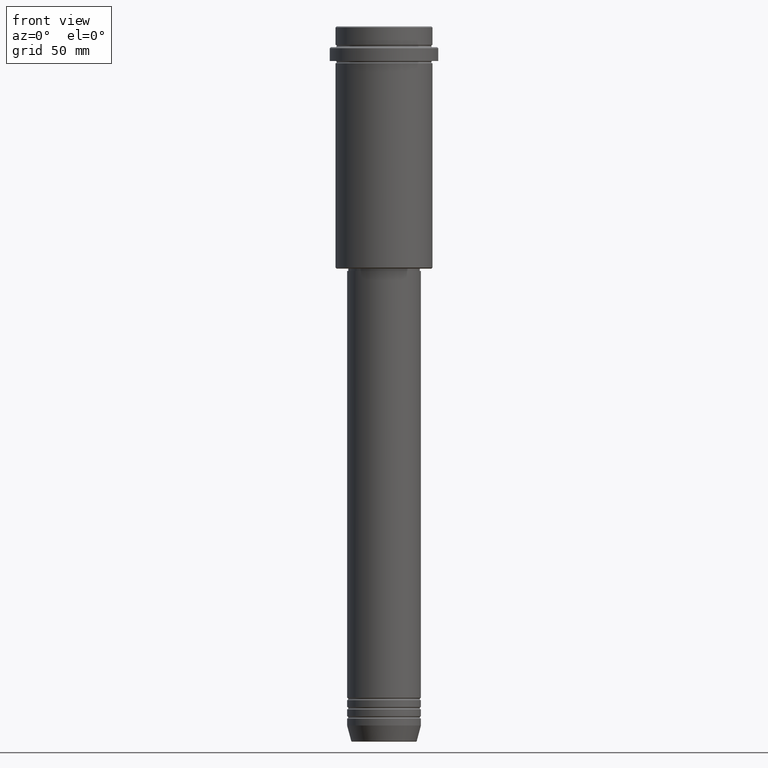
[diagram: clean part render]
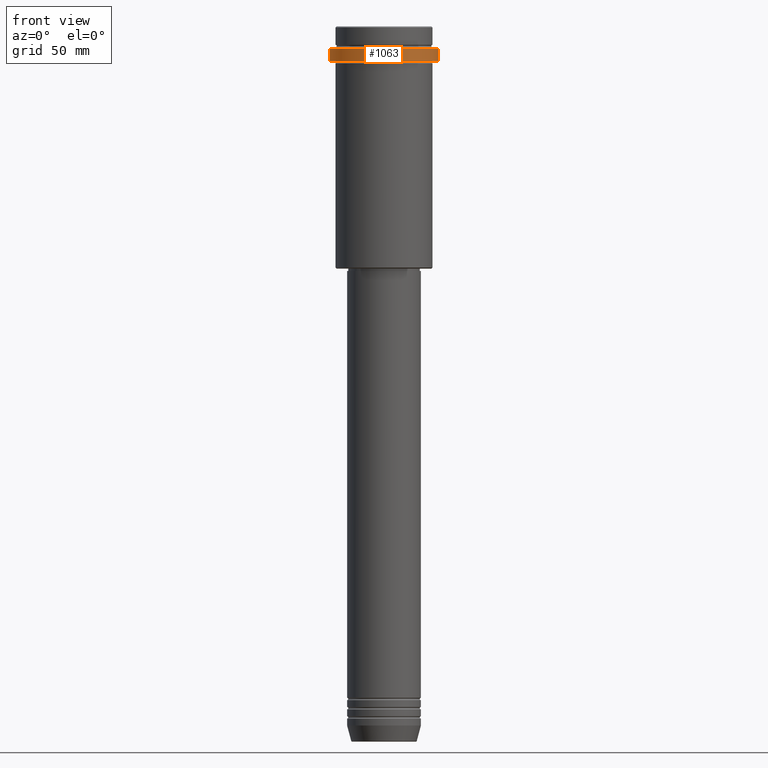
[diagram: same view with one face highlighted and labeled with its STEP entity id]
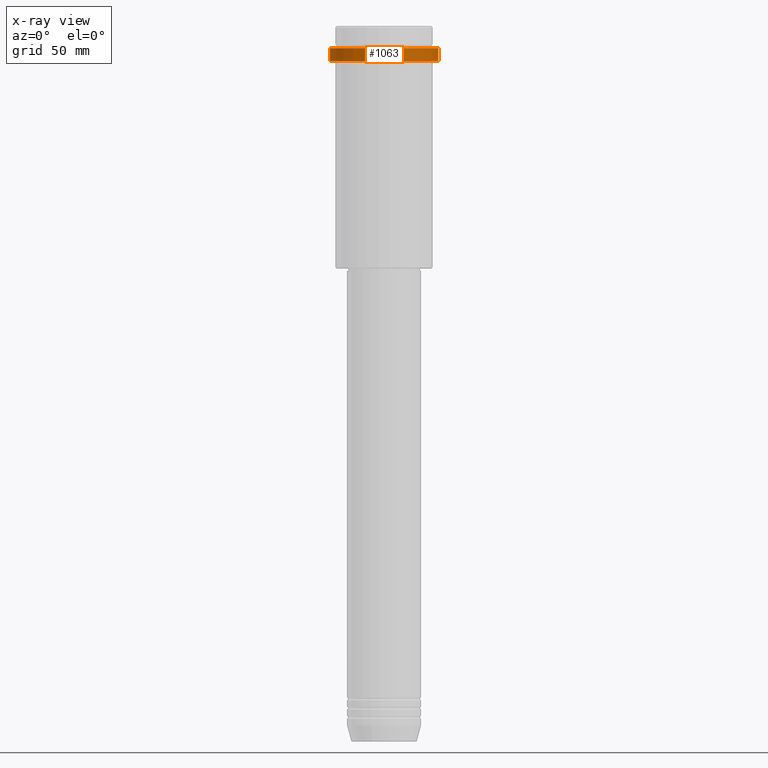
[diagram: x-ray of the same camera — body ghosted, the highlighted face saturated]
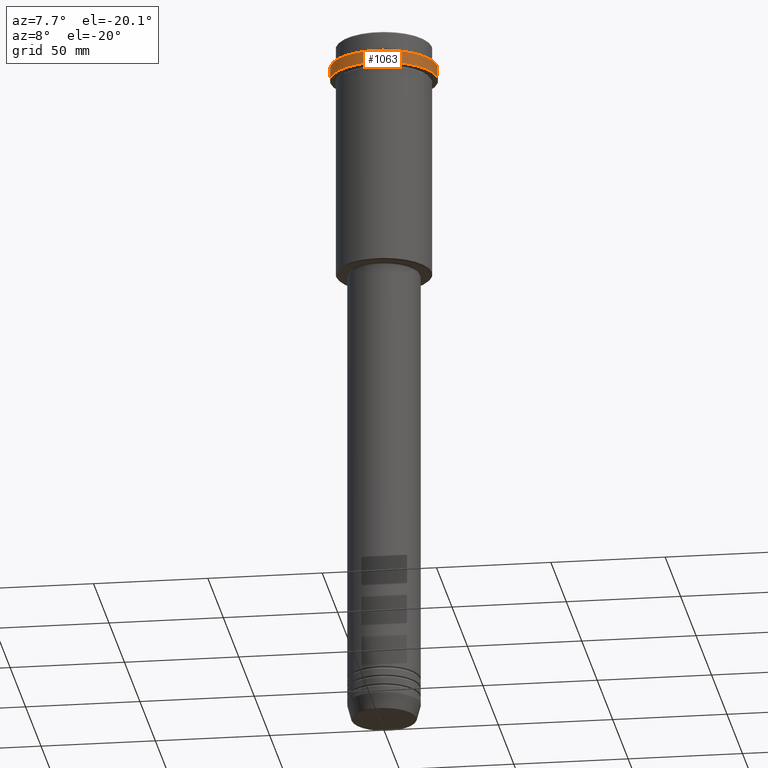
[diagram: same view with one face highlighted and labeled with its STEP entity id]
A machine part, front view. The second image highlights one B-rep face of the part: STEP entity #1063.
The next image is the same camera in x-ray: the body ghosted, the highlighted face saturated — about 0% of this face is hidden behind the body in this view.
A second angle (auxiliary view) of the same face is appended — the face is thin or edge-on in the first view.
In plain terms, the highlighted cylindrical surface (partial cylindrical patch) has radius 23.5 mm, axis along (-0, -0, 1).
Its self-contained STEP definition (entity closure, byte-faithful):
#50 = CARTESIAN_POINT ( 'NONE',  ( 0.000000000000000000, 0.000000000000000000, 0.000000000000000000 ) ) ;
#134 = DIRECTION ( 'NONE',  ( 1.000000000000000000, 0.000000000000000000, 0.000000000000000000 ) ) ;
#216 = ORIENTED_EDGE ( 'NONE', *, *, #973, .T. ) ;
#240 = CIRCLE ( 'NONE', #1167, 23.50000000000000355 ) ;
#262 = CARTESIAN_POINT ( 'NONE',  ( 0.000000000000000000, 0.000000000000000000, -9.500000000000000000 ) ) ;
#270 = CYLINDRICAL_SURFACE ( 'NONE', #1016, 23.50000000000000000 ) ;
#279 = CARTESIAN_POINT ( 'NONE',  ( 23.50000000000000355, 0.000000000000000000, -15.00000000000000000 ) ) ;
#328 = CIRCLE ( 'NONE', #516, 23.50000000000000000 ) ;
#360 = ORIENTED_EDGE ( 'NONE', *, *, #594, .F. ) ;
#368 = VERTEX_POINT ( 'NONE', #692 ) ;
#500 = DIRECTION ( 'NONE',  ( -0.000000000000000000, -0.000000000000000000, 1.000000000000000000 ) ) ;
#516 = AXIS2_PLACEMENT_3D ( 'NONE', #262, #700, #658 ) ;
#559 = VECTOR ( 'NONE', #500, 1000.000000000000000 ) ;
#561 = ORIENTED_EDGE ( 'NONE', *, *, #1199, .T. ) ;
#569 = DIRECTION ( 'NONE',  ( 1.000000000000000000, 0.000000000000000000, 0.000000000000000000 ) ) ;
#594 = EDGE_CURVE ( 'NONE', #1019, #1222, #853, .T. ) ;
#618 = CARTESIAN_POINT ( 'NONE',  ( 23.50000000000000000, 0.000000000000000000, 0.000000000000000000 ) ) ;
#623 = DIRECTION ( 'NONE',  ( -0.000000000000000000, -0.000000000000000000, 1.000000000000000000 ) ) ;
#655 = CARTESIAN_POINT ( 'NONE',  ( 0.000000000000000000, 0.000000000000000000, -15.00000000000000000 ) ) ;
#658 = DIRECTION ( 'NONE',  ( 1.000000000000000000, 0.000000000000000000, 0.000000000000000000 ) ) ;
#663 = CARTESIAN_POINT ( 'NONE',  ( -23.50000000000000000, 2.877919977996280320E-15, -9.500000000000000000 ) ) ;
#692 = CARTESIAN_POINT ( 'NONE',  ( 23.50000000000000000, 0.000000000000000000, -9.500000000000000000 ) ) ;
#700 = DIRECTION ( 'NONE',  ( 0.000000000000000000, 0.000000000000000000, -1.000000000000000000 ) ) ;
#736 = EDGE_LOOP ( 'NONE', ( #360, #216, #561, #1163 ) ) ;
#842 = LINE ( 'NONE', #618, #559 ) ;
#852 = DIRECTION ( 'NONE',  ( -0.000000000000000000, -0.000000000000000000, 1.000000000000000000 ) ) ;
#853 = LINE ( 'NONE', #980, #1410 ) ;
#916 = FACE_OUTER_BOUND ( 'NONE', #736, .T. ) ;
#973 = EDGE_CURVE ( 'NONE', #1019, #1398, #240, .T. ) ;
#980 = CARTESIAN_POINT ( 'NONE',  ( -23.50000000000000000, 2.877919977996280320E-15, 0.000000000000000000 ) ) ;
#1016 = AXIS2_PLACEMENT_3D ( 'NONE', #50, #1144, #134 ) ;
#1019 = VERTEX_POINT ( 'NONE', #1058 ) ;
#1058 = CARTESIAN_POINT ( 'NONE',  ( -23.50000000000000711, 2.877919977996281109E-15, -15.00000000000000000 ) ) ;
#1063 = ADVANCED_FACE ( 'NONE', ( #916 ), #270, .T. ) ;
#1144 = DIRECTION ( 'NONE',  ( -0.000000000000000000, -0.000000000000000000, 1.000000000000000000 ) ) ;
#1163 = ORIENTED_EDGE ( 'NONE', *, *, #1302, .T. ) ;
#1167 = AXIS2_PLACEMENT_3D ( 'NONE', #655, #852, #569 ) ;
#1199 = EDGE_CURVE ( 'NONE', #1398, #368, #842, .T. ) ;
#1222 = VERTEX_POINT ( 'NONE', #663 ) ;
#1302 = EDGE_CURVE ( 'NONE', #368, #1222, #328, .T. ) ;
#1398 = VERTEX_POINT ( 'NONE', #279 ) ;
#1410 = VECTOR ( 'NONE', #623, 1000.000000000000000 ) ;